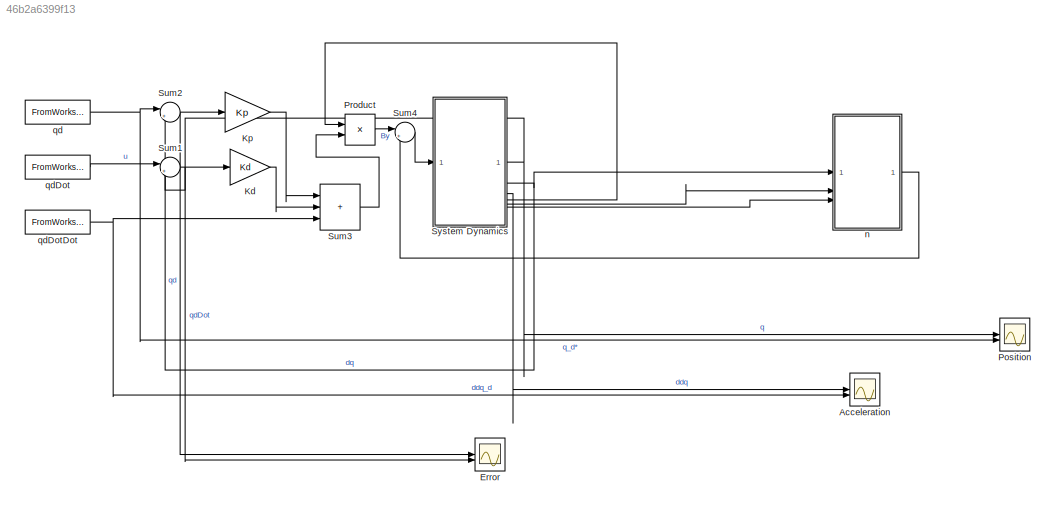
MODEL slx_46b2a6399f13
KIND model
CONFIG AbsTol = auto
CONFIG EnableMultiTasking = off
CONFIG FixedStep = t_step
CONFIG MaxStep = auto
CONFIG MinStep = auto
CONFIG RelTol = 1e-3
CONFIG SampleTimeConstraint = Unconstrained
CONFIG SolverName = ode1
CONFIG StartTime = 0.0
CONFIG StopTime = Tf
BLOCK [Scope] Acceleration
  Floating = off
  NumInputPorts = 2
  ScopeSpecificationString = Simulink.scopes.TimeScopeBlockCfg('CurrentConfiguration', extmgr.ConfigurationSet(extmgr.Configuration('Core','General UI',true),extmgr.Configuration('Core','Source UI',true),extmgr.Configuration('Sources','WiredSimulink',true,'DataLoggingVariableName','ScopeData2'),extmgr.Configuration('Visuals','Time Domain',true,'SerializedDisplays',{struct('MinYLimReal','-38.96647','MaxYLimReal','24.12196','YL...<+1535ch>
BLOCK [Scope] Error
  Floating = off
  NumInputPorts = 2
  ScopeSpecificationString = Simulink.scopes.TimeScopeBlockCfg('CurrentConfiguration', extmgr.ConfigurationSet(extmgr.Configuration('Core','General UI',true),extmgr.Configuration('Core','Source UI',true),extmgr.Configuration('Sources','WiredSimulink',true,'DataLoggingVariableName','ScopeData1'),extmgr.Configuration('Visuals','Time Domain',true,'SerializedDisplays',{struct('MinYLimReal','-0.08491','MaxYLimReal','0.34754','YLab...<+2014ch>
BLOCK [Gain] Kd
  Gain = Kd
  Multiplication = Matrix(K*u)
BLOCK [Gain] Kp
  Gain = Kp
  Multiplication = Matrix(K*u)
BLOCK [Scope] Position
  Floating = off
  NumInputPorts = 2
  ScopeSpecificationString = Simulink.scopes.TimeScopeBlockCfg('CurrentConfiguration', extmgr.ConfigurationSet(extmgr.Configuration('Core','General UI',true),extmgr.Configuration('Core','Source UI',true),extmgr.Configuration('Sources','WiredSimulink',true),extmgr.Configuration('Visuals','Time Domain',true,'SerializedDisplays',{struct('MinYLimReal','-1.83774','MaxYLimReal','0.78305','YLabelReal','','MinYLimMag','0.00000','MaxY...<+2074ch>
BLOCK [Product] Product
  Multiplication = Matrix(*)
BLOCK [Sum] Sum1
  Inputs = |+-
BLOCK [Sum] Sum2
  Inputs = |+-
BLOCK [Sum] Sum3
  IconShape = rectangular
  Inputs = |+++
BLOCK [Sum] Sum4
  Inputs = |++
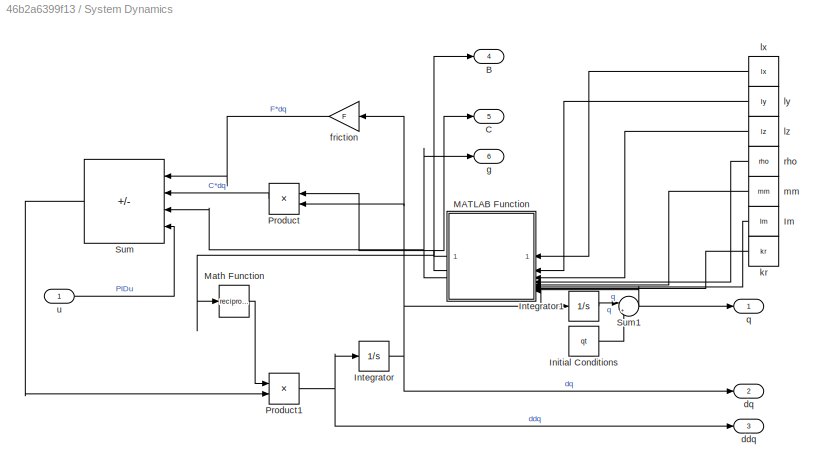
BLOCK [SubSystem] System Dynamics
BLOCK [Outport] System Dynamics/B
  Port = 4
BLOCK [Outport] System Dynamics/C
  Port = 5
BLOCK [Constant] System Dynamics/Im
  Value = Im
BLOCK [Constant] System Dynamics/Initial Conditions
  Value = qt
BLOCK [Integrator] System Dynamics/Integrator
  InitialCondition = [0; 0]
BLOCK [Integrator] System Dynamics/Integrator1
  InitialCondition = [0;0]
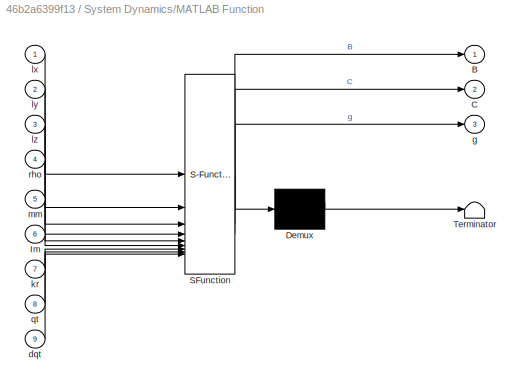
BLOCK [SubSystem] System Dynamics/MATLAB Function
  ErrorFcn = Stateflow.Translate.translate
  LibrarySourceBlock = simulink/User-Defined\nFunctions/MATLAB Function
  PermitHierarchicalResolution = ExplicitOnly
  SFBlockType = MATLAB Function
  TreatAsAtomicUnit = on
BLOCK [Demux] System Dynamics/MATLAB Function/ Demux 
  Outputs = 1
BLOCK [S-Function] System Dynamics/MATLAB Function/ SFunction 
  EnableBusSupport = on
  FunctionName = sf_sfun
  PortCounts = [9 4]
  SFcnIsStateOwnerBlock = off
  SFunctionDeploymentMode = off
  Tag = Stateflow S-Function 2
BLOCK [Terminator] System Dynamics/MATLAB Function/ Terminator 
BLOCK [Outport] System Dynamics/MATLAB Function/B
BLOCK [Outport] System Dynamics/MATLAB Function/C
  Port = 2
BLOCK [Inport] System Dynamics/MATLAB Function/Im
  Port = 6
BLOCK [Inport] System Dynamics/MATLAB Function/dqt
  Port = 9
BLOCK [Outport] System Dynamics/MATLAB Function/g
  Port = 3
BLOCK [Inport] System Dynamics/MATLAB Function/kr
  Port = 7
BLOCK [Inport] System Dynamics/MATLAB Function/lx
BLOCK [Inport] System Dynamics/MATLAB Function/ly
  Port = 2
BLOCK [Inport] System Dynamics/MATLAB Function/lz
  Port = 3
BLOCK [Inport] System Dynamics/MATLAB Function/mm
  Port = 5
BLOCK [Inport] System Dynamics/MATLAB Function/qt
  Port = 8
BLOCK [Inport] System Dynamics/MATLAB Function/rho
  Port = 4
BLOCK [Math] System Dynamics/Math Function
  Operator = reciprocal
BLOCK [Product] System Dynamics/Product
  Multiplication = Matrix(*)
BLOCK [Product] System Dynamics/Product1
  Multiplication = Matrix(*)
BLOCK [Sum] System Dynamics/Sum
  IconShape = rectangular
  Inputs = |---+
BLOCK [Sum] System Dynamics/Sum1
  Inputs = |++
BLOCK [Outport] System Dynamics/ddq
  Port = 3
BLOCK [Outport] System Dynamics/dq
  Port = 2
BLOCK [Gain] System Dynamics/friction
  Gain = F
  Multiplication = Matrix(K*u)
BLOCK [Outport] System Dynamics/g
  Port = 6
BLOCK [Constant] System Dynamics/kr
  Value = kr
BLOCK [Constant] System Dynamics/lx
  Value = lx
BLOCK [Constant] System Dynamics/ly
  Value = ly
BLOCK [Constant] System Dynamics/lz
  Value = lz
BLOCK [Constant] System Dynamics/mm
  Value = mm
BLOCK [Outport] System Dynamics/q
BLOCK [Constant] System Dynamics/rho
  Value = rho
BLOCK [Inport] System Dynamics/u
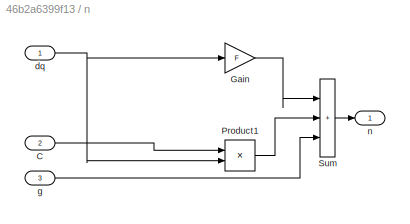
BLOCK [SubSystem] n
BLOCK [Inport] n/C
  Port = 2
BLOCK [Gain] n/Gain
  Gain = F
  Multiplication = Matrix(K*u)
BLOCK [Product] n/Product1
  Multiplication = Matrix(*)
BLOCK [Sum] n/Sum
  IconShape = rectangular
  Inputs = |+++
BLOCK [Inport] n/dq
BLOCK [Inport] n/g
  Port = 3
BLOCK [Outport] n/n
BLOCK [FromWorkspace] qd
  OutDataTypeStr = double
  SampleTime = t_step
  VariableName = [t', qd(:,1), qd(:,1)]
BLOCK [FromWorkspace] qdDot
  OutDataTypeStr = double
  SampleTime = t_step
  VariableName = [t', qd(:,2), qd(:,2)]
BLOCK [FromWorkspace] qdDotDot
  OutDataTypeStr = double
  SampleTime = t_step
  VariableName = [t', qd(:,3), qd(:,3)]
LINE Kd:1 -> Sum3:2
LINE Kp:1 -> Sum3:1
LINE Product:1 -> Sum4:1
NET Sum1:1 -> Error:2, Kd:1
NET Sum2:1 -> Error:1, Kp:1
LINE Sum3:1 -> Product:2
LINE Sum4:1 -> System Dynamics:1
LINE System Dynamics/Im:1 -> System Dynamics/MATLAB Function:6
LINE System Dynamics/Initial Conditions:1 -> System Dynamics/Sum1:2
LINE System Dynamics/Integrator1:1 -> System Dynamics/Sum1:1
NET System Dynamics/Integrator:1 -> System Dynamics/Integrator1:1, System Dynamics/MATLAB Function:9, System Dynamics/Product:2, System Dynamics/dq:1, System Dynamics/friction:1
NET System Dynamics/MATLAB Function:1 -> System Dynamics/B:1, System Dynamics/Math Function:1
NET System Dynamics/MATLAB Function:2 -> System Dynamics/C:1, System Dynamics/Product:1
NET System Dynamics/MATLAB Function:3 -> System Dynamics/Sum:3, System Dynamics/g:1
LINE System Dynamics/Math Function:1 -> System Dynamics/Product1:1
NET System Dynamics/Product1:1 -> System Dynamics/Integrator:1, System Dynamics/ddq:1
LINE System Dynamics/Product:1 -> System Dynamics/Sum:2
NET System Dynamics/Sum1:1 -> System Dynamics/MATLAB Function:8, System Dynamics/q:1
LINE System Dynamics/Sum:1 -> System Dynamics/Product1:2
LINE System Dynamics/friction:1 -> System Dynamics/Sum:1
LINE System Dynamics/kr:1 -> System Dynamics/MATLAB Function:7
LINE System Dynamics/lx:1 -> System Dynamics/MATLAB Function:1
LINE System Dynamics/ly:1 -> System Dynamics/MATLAB Function:2
LINE System Dynamics/lz:1 -> System Dynamics/MATLAB Function:3
LINE System Dynamics/mm:1 -> System Dynamics/MATLAB Function:5
LINE System Dynamics/rho:1 -> System Dynamics/MATLAB Function:4
LINE System Dynamics/u:1 -> System Dynamics/Sum:4
NET System Dynamics:1 -> Position:1, Sum2:2
NET System Dynamics:2 -> Sum1:2, n:1
LINE System Dynamics:3 -> Acceleration:1
LINE System Dynamics:4 -> Product:1
LINE System Dynamics:5 -> n:2
LINE System Dynamics:6 -> n:3
LINE n/C:1 -> n/Product1:1
LINE n/Gain:1 -> n/Sum:1
LINE n/Product1:1 -> n/Sum:2
LINE n/Sum:1 -> n/n:1
NET n/dq:1 -> n/Gain:1, n/Product1:2
LINE n/g:1 -> n/Sum:3
LINE n:1 -> Sum4:2
NET qd:1 -> Position:2, Sum2:1
LINE qdDot:1 -> Sum1:1
NET qdDotDot:1 -> Acceleration:2, Sum3:3
note: NET lines group one-source signal fan-out (src -> all destinations, sorted); 1:1 wires keep LINE
CHART System Dynamics/MATLAB Function states=1 transitions=1
  STATE_LABEL 'eML_blk_kernel()'
  STATE_LABEL "SCRIPT:\nfunction [B, C, g] = fcn(lx, ly, lz, rho, mm, Im, kr, qt, dqt)\ncoder.extrinsic('generateBCg');\nB = zeros(2);\nC = zeros(2);\ng = zeros(2,1);\n[B, C, g] = generateBCg(lx, ly, lz, rho, mm, Im, kr, qt, dqt);"
CHART  states=0 transitions=0
